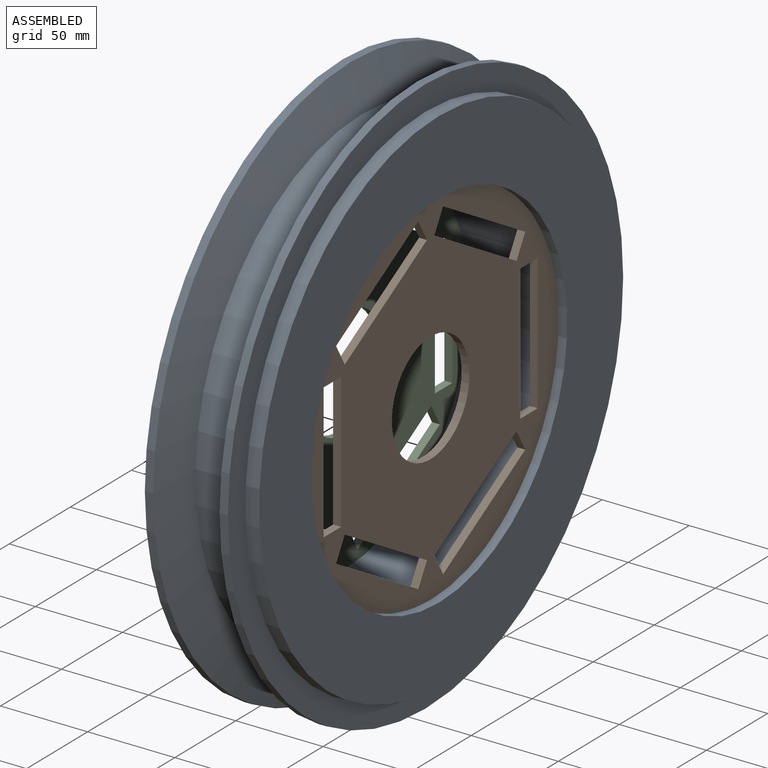
[diagram: assembled view]
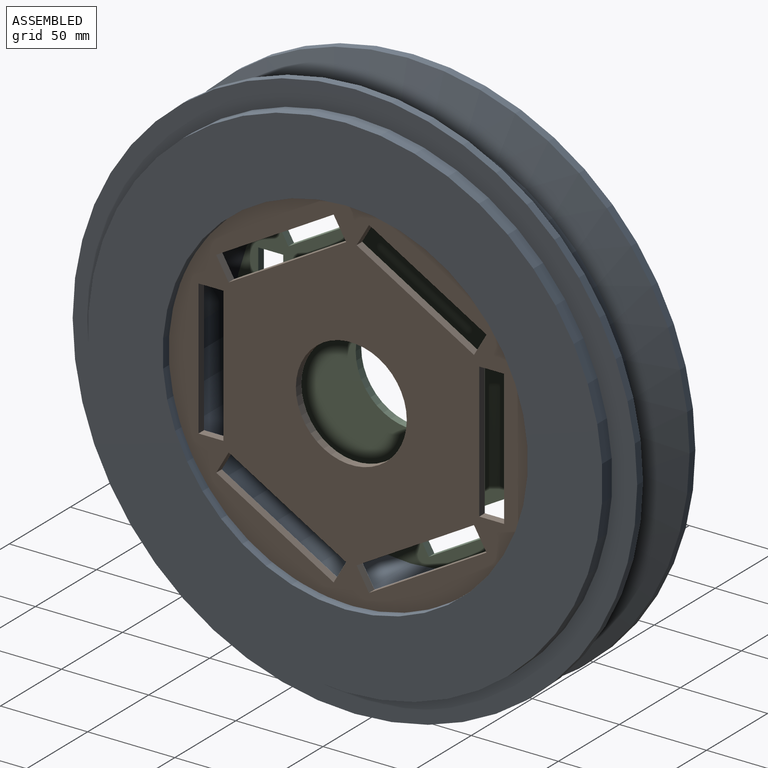
[diagram: assembled view, second angle]
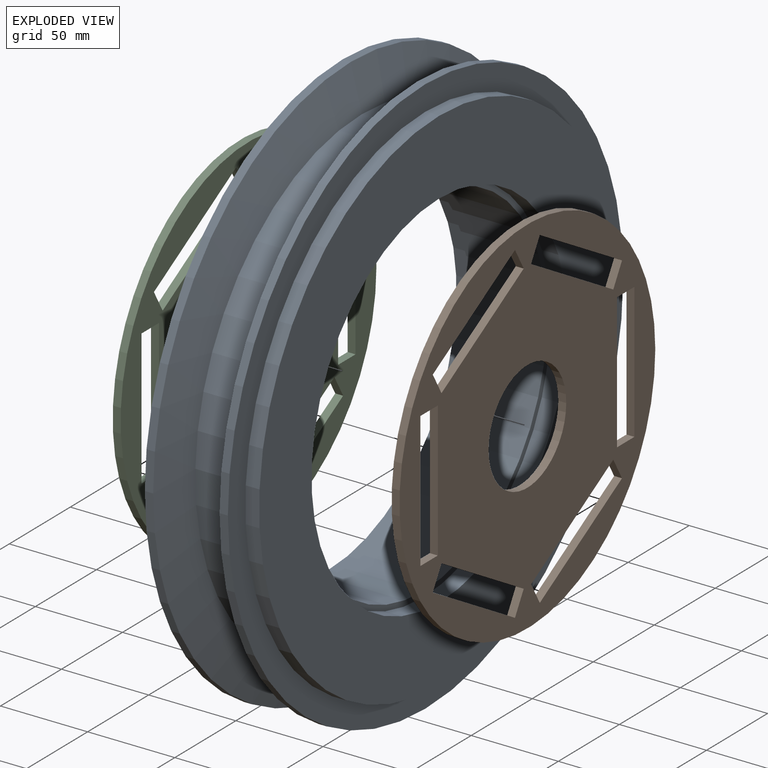
[diagram: exploded view]
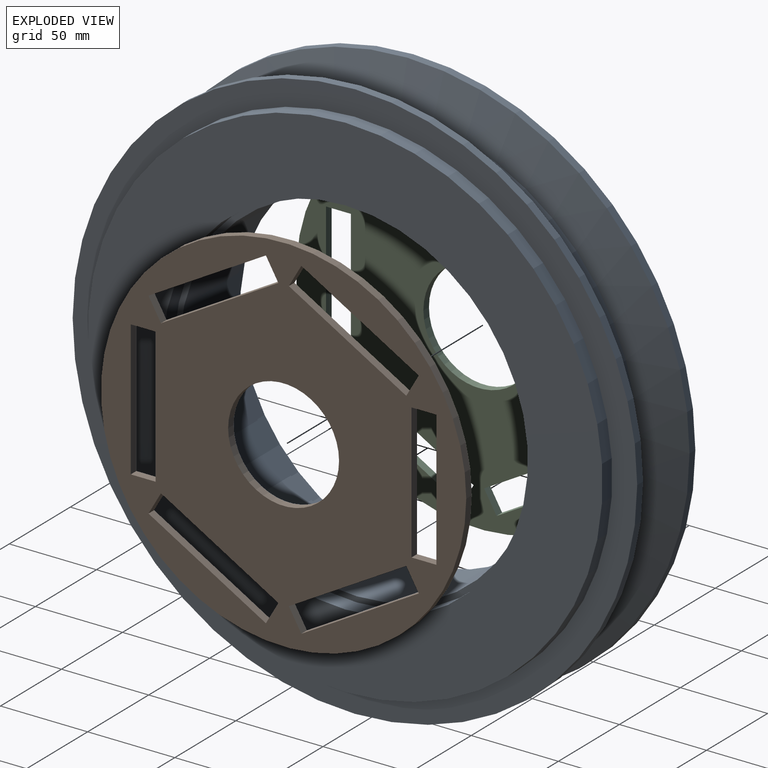
[diagram: exploded view, second angle]
ASSEMBLY  parts=3 mates=2
PART A: 16 faces, bbox 63.5x323.9x323.9 mm
  f0: cylinder r=101.6mm len=203.2mm, axis (-1,0,0), area 28375.6mm2, adj f13,f15
  f1: cone r=136.53mm half-angle=76deg, axis (-1,0,0), area 24548.2mm2, adj f2,f11
  f2: cylinder r=136.53mm len=273.05mm, axis (-1,0,0), area 21788.4mm2, adj f1,f3
  f3: cone r=136.53mm half-angle=76deg, axis (1,0,0), area 24548.2mm2, adj f2,f4
  f4: cylinder r=161.93mm len=323.85mm, axis (-1,0,0), area 4845.4mm2, adj f3,f5
  f5: plane 323.85x323.85mm, normal (1,0,0), area 13894.9mm2, adj f4,f6
  f6: cylinder r=147.64mm len=295.28mm, axis (-1,0,0), area 7363.1mm2, adj f5,f7
  f7: plane 295.28x295.28mm, normal (1,0,0), area 33989mm2, adj f6,f14
  f8: plane 295.28x295.28mm, normal (-1,0,0), area 33989mm2, adj f9,f12
  f9: cylinder r=147.64mm len=295.28mm, axis (-1,0,0), area 7363.1mm2, adj f8,f10
  f10: plane 323.85x323.85mm, normal (-1,0,0), area 13894.9mm2, adj f9,f11
  f11: cylinder r=161.93mm len=323.85mm, axis (-1,0,0), area 4845.4mm2, adj f1,f10
  f12: cylinder r=104.77mm len=209.55mm, axis (-1,0,0), area 6270.5mm2, adj f8,f13
  f13: plane 209.55x209.55mm, normal (-1,0,0), area 2058.5mm2, adj f0,f12
  f14: cylinder r=104.77mm len=209.55mm, axis (1,0,0), area 6270.5mm2, adj f7,f15
  f15: plane 209.55x209.55mm, normal (1,0,0), area 2058.5mm2, adj f0,f14
PART B: 28 faces, bbox 209.6x4.5x209.6 mm
  f0: plane 77.79x4.55mm, normal (0,0,1), area 353.7mm2, adj f1,f19,f26,f27
  f1: plane 14.29x4.55mm, normal (1,0,0), area 65mm2, adj f0,f2,f26,f27
  f2: plane 77.79x4.55mm, normal (0,0,-1), area 353.7mm2, adj f1,f19,f26,f27
  f3: plane 67.37x38.89mm, normal (0.87,0,0.5), area 353.7mm2, adj f4,f20,f26,f27
  f4: plane 12.37x7.14mm, normal (0.5,0,-0.87), area 65mm2, adj f3,f5,f26,f27
  f5: plane 67.37x38.89mm, normal (-0.87,0,-0.5), area 353.7mm2, adj f4,f20,f26,f27
  f6: plane 67.37x38.89mm, normal (0.87,0,-0.5), area 353.7mm2, adj f7,f21,f26,f27
  f7: plane 12.37x7.14mm, normal (-0.5,0,-0.87), area 65mm2, adj f6,f8,f26,f27
  f8: plane 67.37x38.89mm, normal (-0.87,0,0.5), area 353.7mm2, adj f7,f21,f26,f27
  f9: plane 77.79x4.55mm, normal (0,0,-1), area 353.7mm2, adj f10,f22,f26,f27
  f10: plane 14.29x4.55mm, normal (-1,0,0), area 65mm2, adj f9,f11,f26,f27
  f11: plane 77.79x4.55mm, normal (0,0,1), area 353.7mm2, adj f10,f22,f26,f27
  f12: plane 67.37x38.89mm, normal (-0.87,0,-0.5), area 353.7mm2, adj f13,f23,f26,f27
  f13: plane 12.37x7.14mm, normal (-0.5,0,0.87), area 65mm2, adj f12,f14,f26,f27
  f14: plane 67.37x38.89mm, normal (0.87,0,0.5), area 353.7mm2, adj f13,f23,f26,f27
  f15: plane 67.37x38.89mm, normal (-0.87,0,0.5), area 353.7mm2, adj f16,f24,f26,f27
  f16: plane 12.37x7.14mm, normal (0.5,0,0.87), area 65mm2, adj f15,f17,f26,f27
  f17: plane 67.37x38.89mm, normal (0.87,0,-0.5), area 353.7mm2, adj f16,f24,f26,f27
  f18: cylinder r=104.77mm len=209.55mm, axis (0,-1,0), area 2993.1mm2, adj f26,f27
  f19: plane 14.29x4.55mm, normal (-1,0,0), area 65mm2, adj f0,f2,f26,f27
  f20: plane 12.37x7.14mm, normal (-0.5,0,0.87), area 65mm2, adj f3,f5,f26,f27
  f21: plane 12.37x7.14mm, normal (0.5,0,0.87), area 65mm2, adj f6,f8,f26,f27
  f22: plane 14.29x4.55mm, normal (1,0,0), area 65mm2, adj f9,f11,f26,f27
  f23: plane 12.37x7.14mm, normal (0.5,0,-0.87), area 65mm2, adj f12,f14,f26,f27
  f24: plane 12.37x7.14mm, normal (-0.5,0,-0.87), area 65mm2, adj f15,f17,f26,f27
  f25: cylinder r=31.81mm len=63.63mm, axis (0,-1,0), area 908.8mm2, adj f26,f27
  f26: plane 209.55x209.55mm, normal (0,1,0), area 24639.8mm2, adj f0,f1,f2,f3,f4,f5,f6,f7
  f27: plane 209.55x209.55mm, normal (0,-1,0), area 24639.8mm2, adj f0,f1,f2,f3,f4,f5,f6,f7
PART C: same geometry as B
PLACE A at identity fixed
PLACE B rot(axis=(0.58,0.58,-0.58),120deg) t=(22.23,0,0)mm
PLACE C rot(axis=(0.58,-0.58,0.58),120deg) t=(-22.23,0,0)mm
MATE fastened C.f18 <-> A.f12  axis (1,0,0) through (-22.23,0,0)mm
MATE fastened B.f18 <-> A.f14  axis (-1,0,0) through (22.23,0,0)mm
